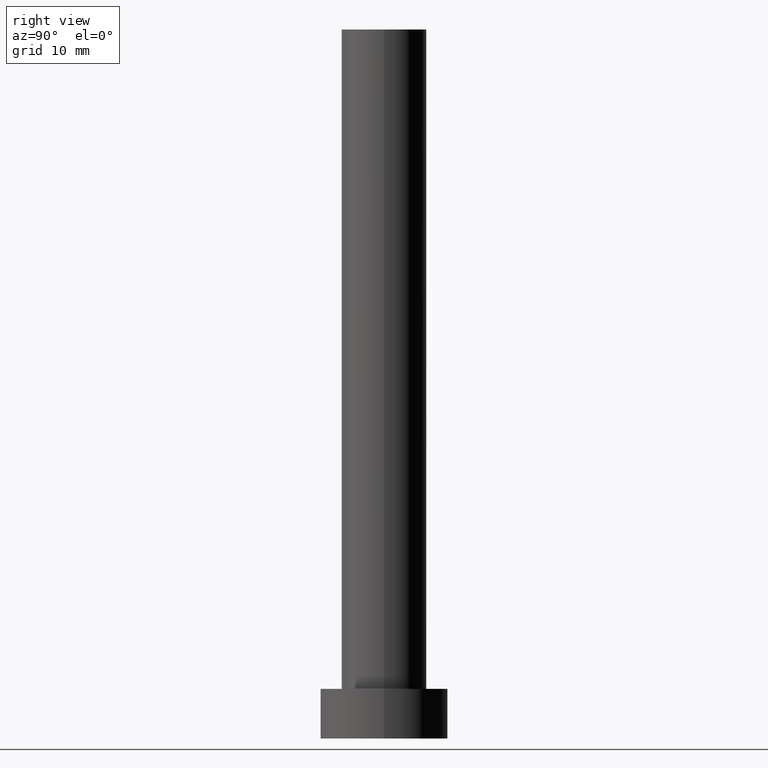
[diagram: clean part render]
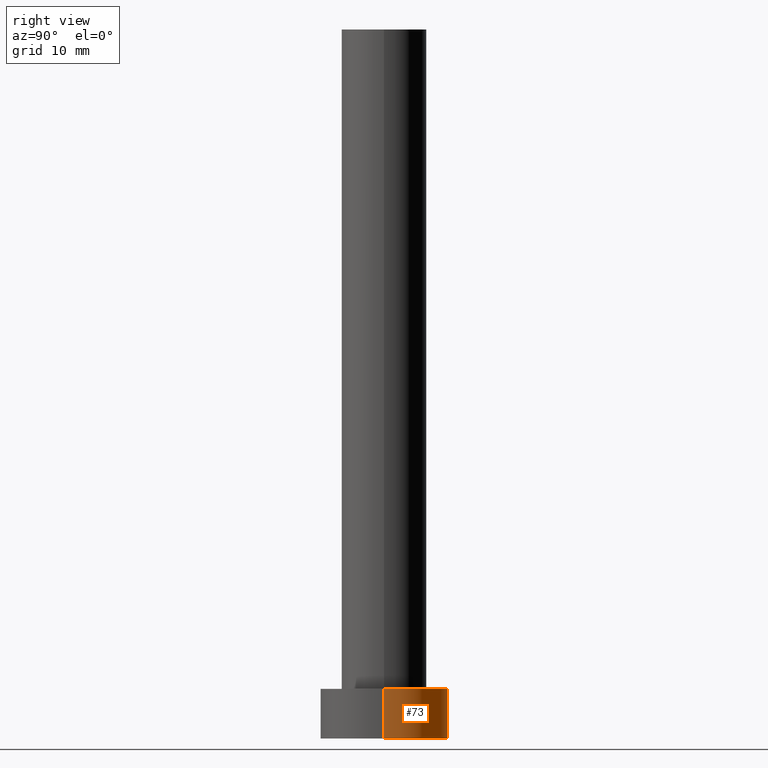
[diagram: same view with one face highlighted and labeled with its STEP entity id]
A machine part, right view. The second image highlights one B-rep face of the part: STEP entity #73.
In plain terms, the highlighted cylindrical surface (partial cylindrical patch) has radius 9 mm, axis along (-0, -0, -1).
Its self-contained STEP definition (entity closure, byte-faithful):
#1 = VECTOR ( 'NONE', #46, 1000.000000000000000 ) ;
#13 = DIRECTION ( 'NONE',  ( -0.000000000000000000, -0.000000000000000000, -1.000000000000000000 ) ) ;
#16 = VERTEX_POINT ( 'NONE', #170 ) ;
#28 = CYLINDRICAL_SURFACE ( 'NONE', #212, 9.000000000000000000 ) ;
#32 = FACE_OUTER_BOUND ( 'NONE', #135, .T. ) ;
#33 = DIRECTION ( 'NONE',  ( -0.000000000000000000, -0.000000000000000000, -1.000000000000000000 ) ) ;
#34 = EDGE_CURVE ( 'NONE', #146, #16, #66, .T. ) ;
#39 = VERTEX_POINT ( 'NONE', #208 ) ;
#46 = DIRECTION ( 'NONE',  ( -0.000000000000000000, -0.000000000000000000, -1.000000000000000000 ) ) ;
#50 = CARTESIAN_POINT ( 'NONE',  ( 0.000000000000000000, 0.000000000000000000, 7.000000000000000000 ) ) ;
#51 = CIRCLE ( 'NONE', #179, 9.000000000000000000 ) ;
#62 = EDGE_CURVE ( 'NONE', #39, #16, #51, .T. ) ;
#64 = CARTESIAN_POINT ( 'NONE',  ( 9.000000000000000000, 1.102182119232617714E-15, 7.000000000000000000 ) ) ;
#65 = EDGE_CURVE ( 'NONE', #238, #39, #112, .T. ) ;
#66 = LINE ( 'NONE', #221, #1 ) ;
#67 = CIRCLE ( 'NONE', #108, 9.000000000000000000 ) ;
#69 = DIRECTION ( 'NONE',  ( 1.000000000000000000, 0.000000000000000000, 0.000000000000000000 ) ) ;
#73 = ADVANCED_FACE ( 'NONE', ( #32 ), #28, .T. ) ;
#75 = ORIENTED_EDGE ( 'NONE', *, *, #62, .T. ) ;
#78 = CARTESIAN_POINT ( 'NONE',  ( -9.000000000000000000, 0.000000000000000000, 7.000000000000000000 ) ) ;
#108 = AXIS2_PLACEMENT_3D ( 'NONE', #210, #245, #186 ) ;
#112 = LINE ( 'NONE', #224, #174 ) ;
#135 = EDGE_LOOP ( 'NONE', ( #191, #175, #75, #167 ) ) ;
#146 = VERTEX_POINT ( 'NONE', #78 ) ;
#167 = ORIENTED_EDGE ( 'NONE', *, *, #34, .F. ) ;
#169 = DIRECTION ( 'NONE',  ( -1.000000000000000000, 0.000000000000000000, 0.000000000000000000 ) ) ;
#170 = CARTESIAN_POINT ( 'NONE',  ( -9.000000000000000000, 0.000000000000000000, 0.000000000000000000 ) ) ;
#174 = VECTOR ( 'NONE', #13, 1000.000000000000000 ) ;
#175 = ORIENTED_EDGE ( 'NONE', *, *, #65, .T. ) ;
#179 = AXIS2_PLACEMENT_3D ( 'NONE', #254, #192, #69 ) ;
#186 = DIRECTION ( 'NONE',  ( 1.000000000000000000, 0.000000000000000000, 0.000000000000000000 ) ) ;
#191 = ORIENTED_EDGE ( 'NONE', *, *, #218, .F. ) ;
#192 = DIRECTION ( 'NONE',  ( 0.000000000000000000, 0.000000000000000000, 1.000000000000000000 ) ) ;
#208 = CARTESIAN_POINT ( 'NONE',  ( 9.000000000000000000, 1.102182119232617714E-15, 0.000000000000000000 ) ) ;
#210 = CARTESIAN_POINT ( 'NONE',  ( 0.000000000000000000, 0.000000000000000000, 7.000000000000000000 ) ) ;
#212 = AXIS2_PLACEMENT_3D ( 'NONE', #50, #33, #169 ) ;
#218 = EDGE_CURVE ( 'NONE', #238, #146, #67, .T. ) ;
#221 = CARTESIAN_POINT ( 'NONE',  ( -9.000000000000000000, 0.000000000000000000, 7.000000000000000000 ) ) ;
#224 = CARTESIAN_POINT ( 'NONE',  ( 9.000000000000000000, 1.102182119232617714E-15, 7.000000000000000000 ) ) ;
#238 = VERTEX_POINT ( 'NONE', #64 ) ;
#245 = DIRECTION ( 'NONE',  ( 0.000000000000000000, 0.000000000000000000, 1.000000000000000000 ) ) ;
#254 = CARTESIAN_POINT ( 'NONE',  ( 0.000000000000000000, 0.000000000000000000, 0.000000000000000000 ) ) ;